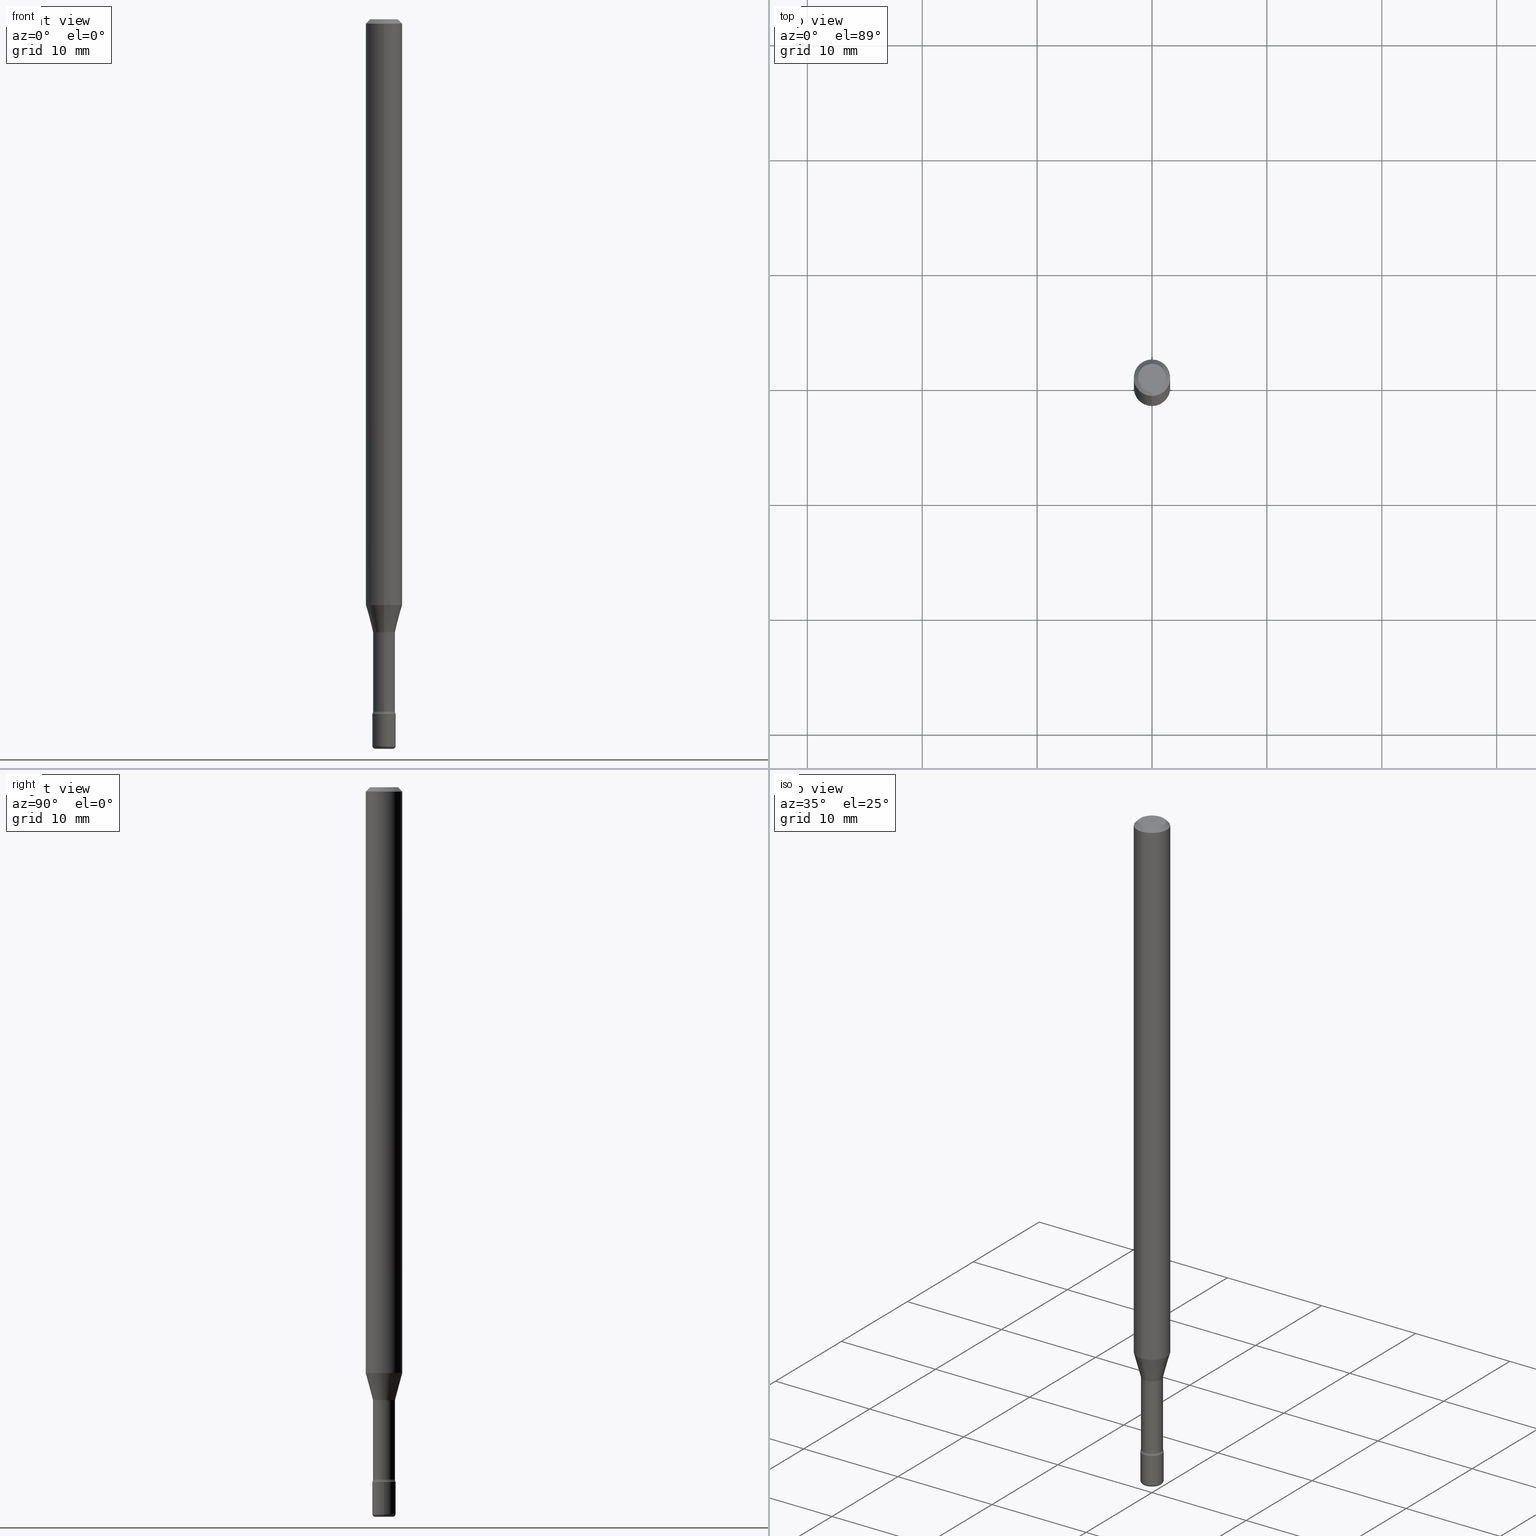
[diagram: canonical four-view strip — front | top / right | iso, engineering-drawing reading convention]
A machine part, canonical four-view strip (front | top / right | iso — engineering-drawing reading convention). The complete STEP part file that produces these views, byte-faithful:
ISO-10303-21;
HEADER;
FILE_DESCRIPTION (( 'STEP AP203' ),
    '1' );
FILE_NAME ('08944.STEP',
    '2024-03-06T20:11:51',
    ( '' ),
    ( '' ),
    'SwSTEP 2.0',
    'SolidWorks 2023',
    '' );
FILE_SCHEMA (( 'CONFIG_CONTROL_DESIGN' ));
ENDSEC;

DATA;
#1 = ORIENTED_EDGE ( 'NONE', *, *, #123, .F. ) ;
#2 = CARTESIAN_POINT ( 'NONE',  ( 5.820215758720625190E-29, -8.309725586446686731E-15, -2.379999999999999893 ) ) ;
#3 = DIRECTION ( 'NONE',  ( -2.445468806185136597E-29, 3.491481338843145583E-15, 1.000000000000000000 ) ) ;
#4 = AXIS2_PLACEMENT_3D ( 'NONE', #107, #219, #493 ) ;
#5 = CARTESIAN_POINT ( 'NONE',  ( 5.800312587032241644E-29, -8.281309132162736146E-15, -2.371861204020250025 ) ) ;
#6 = AXIS2_PLACEMENT_3D ( 'NONE', #171, #3, #315 ) ;
#7 = VERTEX_POINT ( 'NONE', #454 ) ;
#8 = CARTESIAN_POINT ( 'NONE',  ( -2.625593966809521792E-16, -0.03760000000000733589, -2.101974787463810834 ) ) ;
#9 = EDGE_LOOP ( 'NONE', ( #436, #547 ) ) ;
#10 = ORIENTED_EDGE ( 'NONE', *, *, #160, .T. ) ;
#11 = ORIENTED_EDGE ( 'NONE', *, *, #160, .F. ) ;
#12 = DIRECTION ( 'NONE',  ( -6.982962677686265922E-15, -1.000000000000000000, 3.491701459975279518E-15 ) ) ;
#13 = AXIS2_PLACEMENT_3D ( 'NONE', #111, #460, #550 ) ;
#14 = AXIS2_PLACEMENT_3D ( 'NONE', #503, #365, #224 ) ;
#15 = CARTESIAN_POINT ( 'NONE',  ( -2.661284769303988670E-16, -0.03811111260567130732, -2.098092501787272912 ) ) ;
#16 = DIRECTION ( 'NONE',  ( 1.000000000000000000, -6.982962677686259611E-15, 0.000000000000000000 ) ) ;
#17 = EDGE_CURVE ( 'NONE', #305, #232, #286, .T. ) ;
#18 = EDGE_LOOP ( 'NONE', ( #371, #200, #1, #258 ) ) ;
#19 = EDGE_CURVE ( 'NONE', #232, #279, #332, .T. ) ;
#20 = CALENDAR_DATE ( 2024, 6, 3 ) ;
#21 = DIRECTION ( 'NONE',  ( 1.839019923739595582E-15, 0.2588190451025242922, 0.9659258262890673130 ) ) ;
#22 = DIRECTION ( 'NONE',  ( 6.982962677686265922E-15, 1.000000000000000000, -3.483106191921935554E-15 ) ) ;
#23 = CARTESIAN_POINT ( 'NONE',  ( 3.316907271900975110E-16, 0.04749999999999998668, 5.964151437511574542E-17 ) ) ;
#24 = APPROVAL_STATUS ( 'not_yet_approved' ) ;
#25 = FACE_OUTER_BOUND ( 'NONE', #221, .T. ) ;
#26 = ORIENTED_EDGE ( 'NONE', *, *, #154, .F. ) ;
#27 = TOROIDAL_SURFACE ( 'NONE', #490, 0.05260000000000000092, 0.01500000000000002373 ) ;
#28 = CARTESIAN_POINT ( 'NONE',  ( 4.440892098501114269E-16, 0.06249999999999295702, -2.007071934891535125 ) ) ;
#29 = DIRECTION ( 'NONE',  ( -6.982962677686266711E-15, -1.000000000000000000, 0.000000000000000000 ) ) ;
#30 = CARTESIAN_POINT ( 'NONE',  ( 0.04000000000000000083, -8.589044093554136769E-15, -2.379999999999999893 ) ) ;
#31 = COORDINATED_UNIVERSAL_TIME_OFFSET ( 5, 0, .BEHIND. ) ;
#32 = CC_DESIGN_PERSON_AND_ORGANIZATION_ASSIGNMENT ( #336, #120, ( #392 ) ) ;
#33 = DIRECTION ( 'NONE',  ( -4.851104656540965064E-15, -0.7071067811865501263, -0.7071067811865449082 ) ) ;
#34 = FACE_OUTER_BOUND ( 'NONE', #406, .T. ) ;
#35 = MANIFOLD_SOLID_BREP ( 'Body-Move/Copy2[2]', #324 ) ;
#36 = COORDINATED_UNIVERSAL_TIME_OFFSET ( 5, 0, .BEHIND. ) ;
#37 = CIRCLE ( 'NONE', #211, 0.03760000000000000148 ) ;
#38 = TOROIDAL_SURFACE ( 'NONE', #405, 0.02999999999999999889, 0.01000000000000008347 ) ;
#39 = LOCAL_TIME ( 15, 11, 51.00000000000000000, #231 ) ;
#40 = ORIENTED_EDGE ( 'NONE', *, *, #161, .F. ) ;
#41 = CC_DESIGN_PERSON_AND_ORGANIZATION_ASSIGNMENT ( #289, #517, ( #448 ) ) ;
#42 = EDGE_CURVE ( 'NONE', #442, #144, #337, .T. ) ;
#43 = CARTESIAN_POINT ( 'NONE',  ( 5.799948008803896804E-29, -8.281831228936231021E-15, -2.371861204020250025 ) ) ;
#44 = CIRCLE ( 'NONE', #14, 0.04000000000000000083 ) ;
#45 = DIRECTION ( 'NONE',  ( -2.445315096420110410E-29, 3.491701459975279518E-15, 1.000000000000000000 ) ) ;
#46 = VERTEX_POINT ( 'NONE', #290 ) ;
#47 = CARTESIAN_POINT ( 'NONE',  ( 6.089217327400989947E-29, -8.693788533719431716E-15, -2.489999999999999769 ) ) ;
#48 = VERTEX_POINT ( 'NONE', #236 ) ;
#49 = ORIENTED_EDGE ( 'NONE', *, *, #195, .F. ) ;
#50 = ADVANCED_BREP_SHAPE_REPRESENTATION ( '08944', ( #204, #35, #243 ), #501 ) ;
#51 = DIRECTION ( 'NONE',  ( -2.445315096420110130E-29, 3.491701459975279518E-15, 1.000000000000000000 ) ) ;
#52 = ADVANCED_FACE ( 'NONE', ( #25 ), #467, .T. ) ;
#53 = CARTESIAN_POINT ( 'NONE',  ( 2.707957421369485703E-16, 0.03811111260565665931, -2.098092501787272912 ) ) ;
#54 = AXIS2_PLACEMENT_3D ( 'NONE', #47, #271, #447 ) ;
#55 = EDGE_CURVE ( 'NONE', #128, #66, #227, .T. ) ;
#56 = DIRECTION ( 'NONE',  ( -2.445315096420110410E-29, 3.491701459975279518E-15, 1.000000000000000000 ) ) ;
#57 = DIRECTION ( 'NONE',  ( -2.445468806185136597E-29, 3.491481338843145583E-15, 1.000000000000000000 ) ) ;
#58 = AXIS2_PLACEMENT_3D ( 'NONE', #76, #257, #484 ) ;
#59 = VERTEX_POINT ( 'NONE', #519 ) ;
#60 = AXIS2_PLACEMENT_3D ( 'NONE', #314, #494, #88 ) ;
#61 = CC_DESIGN_SECURITY_CLASSIFICATION ( #193, ( #392 ) ) ;
#62 = DIRECTION ( 'NONE',  ( 7.105427357601001859E-15, 1.000000000000000000, -3.491481338843145583E-15 ) ) ;
#63 = DIRECTION ( 'NONE',  ( -6.982962677686265133E-15, -1.000000000000000000, 3.491701459975279518E-15 ) ) ;
#64 = DIRECTION ( 'NONE',  ( 0.000000000000000000, 0.000000000000000000, 1.000000000000000000 ) ) ;
#65 = ORIENTED_EDGE ( 'NONE', *, *, #277, .F. ) ;
#66 = VERTEX_POINT ( 'NONE', #116 ) ;
#67 = DIRECTION ( 'NONE',  ( 2.445315096420110130E-29, -3.491701459975279518E-15, -1.000000000000000000 ) ) ;
#68 = COORDINATED_UNIVERSAL_TIME_OFFSET ( 5, 0, .BEHIND. ) ;
#69 = DIRECTION ( 'NONE',  ( -2.445315096420110410E-29, 3.491701459975279518E-15, 1.000000000000000000 ) ) ;
#70 = AXIS2_PLACEMENT_3D ( 'NONE', #43, #45, #351 ) ;
#71 = VECTOR ( 'NONE', #89, 39.37007874015748143 ) ;
#72 = EDGE_CURVE ( 'NONE', #495, #7, #114, .T. ) ;
#73 = AXIS2_PLACEMENT_3D ( 'NONE', #408, #145, #143 ) ;
#74 = APPLICATION_PROTOCOL_DEFINITION ( 'international standard', 'config_control_design', 1994, #348 ) ;
#75 = CARTESIAN_POINT ( 'NONE',  ( -4.287811248607203282E-16, -0.06250000000000005551, -0.01499999999999981036 ) ) ;
#76 = CARTESIAN_POINT ( 'NONE',  ( 3.737454790098640296E-16, 0.05259999999999265957, -2.101974787463811278 ) ) ;
#77 = PERSON_AND_ORGANIZATION ( #190, #274 ) ;
#78 = DIRECTION ( 'NONE',  ( -2.445315096420110130E-29, 3.491701459975279518E-15, 1.000000000000000000 ) ) ;
#79 = DIRECTION ( 'NONE',  ( -2.445315096420110410E-29, 3.491701459975279518E-15, 1.000000000000000000 ) ) ;
#80 = EDGE_CURVE ( 'NONE', #355, #232, #292, .T. ) ;
#81 = DIRECTION ( 'NONE',  ( -2.445315096420110410E-29, 3.491701459975279518E-15, 1.000000000000000000 ) ) ;
#82 = CIRCLE ( 'NONE', #413, 0.01499999999999996822 ) ;
#83 = AXIS2_PLACEMENT_3D ( 'NONE', #23, #67, #567 ) ;
#84 = ORIENTED_EDGE ( 'NONE', *, *, #275, .F. ) ;
#85 = EDGE_LOOP ( 'NONE', ( #309, #418, #455, #49 ) ) ;
#86 = CIRCLE ( 'NONE', #215, 0.01000000000000008521 ) ;
#87 = FACE_OUTER_BOUND ( 'NONE', #85, .T. ) ;
#88 = DIRECTION ( 'NONE',  ( -6.982962677686265922E-15, -1.000000000000000000, 3.491701459975279518E-15 ) ) ;
#89 = DIRECTION ( 'NONE',  ( 4.937700262164548831E-15, 0.7071067811865452413, -0.7071067811865497932 ) ) ;
#90 = DIRECTION ( 'NONE',  ( -6.982962677686266711E-15, -1.000000000000000000, 0.000000000000000000 ) ) ;
#91 = CARTESIAN_POINT ( 'NONE',  ( -1.169113584055446105E-44, 1.669184350826100908E-30, 4.780733988912460139E-16 ) ) ;
#92 = ORIENTED_EDGE ( 'NONE', *, *, #391, .T. ) ;
#93 = AXIS2_PLACEMENT_3D ( 'NONE', #252, #334, #163 ) ;
#94 = CARTESIAN_POINT ( 'NONE',  ( 5.130497268306256374E-29, -7.325912651653808502E-15, -2.098092501787272912 ) ) ;
#95 = ADVANCED_FACE ( 'NONE', ( #470 ), #109, .T. ) ;
#96 = DIRECTION ( 'NONE',  ( -2.445468806185136597E-29, 3.491481338843145583E-15, 1.000000000000000000 ) ) ;
#97 = EDGE_LOOP ( 'NONE', ( #223, #533, #26, #284 ) ) ;
#98 = EDGE_CURVE ( 'NONE', #305, #495, #312, .T. ) ;
#99 = ORIENTED_EDGE ( 'NONE', *, *, #19, .F. ) ;
#100 = EDGE_CURVE ( 'NONE', #541, #212, #539, .T. ) ;
#101 = DIRECTION ( 'NONE',  ( -2.445315096420110410E-29, 3.491701459975279518E-15, 1.000000000000000000 ) ) ;
#102 = AXIS2_PLACEMENT_3D ( 'NONE', #388, #101, #63 ) ;
#103 = ORIENTED_EDGE ( 'NONE', *, *, #72, .T. ) ;
#104 = AXIS2_PLACEMENT_3D ( 'NONE', #396, #256, #173 ) ;
#105 = CALENDAR_DATE ( 2024, 6, 3 ) ;
#106 = CARTESIAN_POINT ( 'NONE',  ( 4.440892098501120186E-16, 0.06249999999999995143, -0.01500000000000024578 ) ) ;
#107 = CARTESIAN_POINT ( 'NONE',  ( 3.667972644630171939E-31, -5.237552189962929655E-17, -0.01500000000000002720 ) ) ;
#108 = CYLINDRICAL_SURFACE ( 'NONE', #339, 0.04000000000000000083 ) ;
#109 = CYLINDRICAL_SURFACE ( 'NONE', #389, 0.03760000000000002923 ) ;
#110 = DATE_TIME_ROLE ( 'creation_date' ) ;
#111 = CARTESIAN_POINT ( 'NONE',  ( 0.000000000000000000, 0.000000000000000000, 0.000000000000000000 ) ) ;
#112 = PERSON_AND_ORGANIZATION ( #190, #274 ) ;
#113 = LINE ( 'NONE', #75, #176 ) ;
#114 = CIRCLE ( 'NONE', #58, 0.01500000000000001853 ) ;
#115 = TOROIDAL_SURFACE ( 'NONE', #202, 0.02999999999999999889, 0.01000000000000008347 ) ;
#116 = CARTESIAN_POINT ( 'NONE',  ( 2.756905814749770095E-16, 0.03759999999999177195, -2.371861204020250025 ) ) ;
#117 = APPROVAL_PERSON_ORGANIZATION ( #112, #184, #159 ) ;
#118 = ADVANCED_FACE ( 'NONE', ( #34 ), #500, .F. ) ;
#119 = FACE_OUTER_BOUND ( 'NONE', #152, .T. ) ;
#120 = PERSON_AND_ORGANIZATION_ROLE ( 'design_supplier' ) ;
#121 = CARTESIAN_POINT ( 'NONE',  ( -4.364351673553916201E-16, -0.06250000000000000000, 6.963047401397009838E-16 ) ) ;
#122 = DIRECTION ( 'NONE',  ( -2.445315096420110410E-29, 3.491701459975279518E-15, 1.000000000000000000 ) ) ;
#123 = EDGE_CURVE ( 'NONE', #232, #355, #368, .T. ) ;
#124 = CARTESIAN_POINT ( 'NONE',  ( 5.139990680079710222E-29, -7.339468434218616322E-15, -2.101974787463810834 ) ) ;
#125 = DATE_AND_TIME ( #526, #353 ) ;
#126 = EDGE_CURVE ( 'NONE', #495, #305, #422, .T. ) ;
#127 = CARTESIAN_POINT ( 'NONE',  ( 5.819849929479863427E-29, -8.310249474741165062E-15, -2.379999999999999893 ) ) ;
#128 = VERTEX_POINT ( 'NONE', #374 ) ;
#129 = CIRCLE ( 'NONE', #242, 0.04000000000000000083 ) ;
#130 = ORIENTED_EDGE ( 'NONE', *, *, #80, .T. ) ;
#131 = FACE_OUTER_BOUND ( 'NONE', #561, .T. ) ;
#132 = CC_DESIGN_PERSON_AND_ORGANIZATION_ASSIGNMENT ( #385, #560, ( #392 ) ) ;
#133 = DIRECTION ( 'NONE',  ( -2.445315096420110410E-29, 3.491701459975279518E-15, 1.000000000000000000 ) ) ;
#134 = DIRECTION ( 'NONE',  ( -2.445315096420110410E-29, 3.491701459975279518E-15, 1.000000000000000000 ) ) ;
#135 = DIRECTION ( 'NONE',  ( -2.445315096420110410E-29, 3.491701459975279518E-15, 1.000000000000000000 ) ) ;
#136 = FACE_OUTER_BOUND ( 'NONE', #558, .T. ) ;
#137 = AXIS2_PLACEMENT_3D ( 'NONE', #169, #81, #178 ) ;
#138 = ADVANCED_FACE ( 'NONE', ( #119 ), #329, .T. ) ;
#139 = CYLINDRICAL_SURFACE ( 'NONE', #13, 0.04000000000000000083 ) ;
#140 = ORIENTED_EDGE ( 'NONE', *, *, #126, .F. ) ;
#141 = DIRECTION ( 'NONE',  ( -6.982962677686267499E-15, -1.000000000000000000, 0.000000000000000000 ) ) ;
#142 = EDGE_LOOP ( 'NONE', ( #250, #350, #203, #217 ) ) ;
#143 = DIRECTION ( 'NONE',  ( 1.000000000000000000, -6.982962677686273021E-15, 0.000000000000000000 ) ) ;
#144 = VERTEX_POINT ( 'NONE', #465 ) ;
#145 = DIRECTION ( 'NONE',  ( -6.982962677686266711E-15, -1.000000000000000000, 3.491481338843145583E-15 ) ) ;
#146 = AXIS2_PLACEMENT_3D ( 'NONE', #306, #133, #307 ) ;
#147 = AXIS2_PLACEMENT_3D ( 'NONE', #504, #135, #357 ) ;
#148 = CARTESIAN_POINT ( 'NONE',  ( 3.737454790098707842E-16, 0.05259999999999174364, -2.371861204020250025 ) ) ;
#149 = CYLINDRICAL_SURFACE ( 'NONE', #93, 0.03760000000000002923 ) ;
#150 = UNCERTAINTY_MEASURE_WITH_UNIT (LENGTH_MEASURE( 1.000000000000000082E-05 ), #515, 'distance_accuracy_value', 'NONE');
#151 = ORIENTED_EDGE ( 'NONE', *, *, #267, .F. ) ;
#152 = EDGE_LOOP ( 'NONE', ( #479, #401 ) ) ;
#153 = ORIENTED_EDGE ( 'NONE', *, *, #126, .T. ) ;
#154 = EDGE_CURVE ( 'NONE', #48, #442, #507, .T. ) ;
#155 = CARTESIAN_POINT ( 'NONE',  ( -0.04000000000000004247, -8.409571439415391389E-15, -2.489999999999999769 ) ) ;
#156 = AXIS2_PLACEMENT_3D ( 'NONE', #317, #489, #285 ) ;
#157 = FACE_OUTER_BOUND ( 'NONE', #142, .T. ) ;
#158 = LOCAL_TIME ( 15, 11, 51.00000000000000000, #210 ) ;
#159 = APPROVAL_ROLE ( '' ) ;
#160 = EDGE_CURVE ( 'NONE', #46, #264, #570, .T. ) ;
#161 = EDGE_CURVE ( 'NONE', #541, #442, #86, .T. ) ;
#162 = CARTESIAN_POINT ( 'NONE',  ( 0.000000000000000000, 0.000000000000000000, 0.000000000000000000 ) ) ;
#163 = DIRECTION ( 'NONE',  ( -6.982962677686265922E-15, -1.000000000000000000, 3.491701459975280701E-15 ) ) ;
#164 = AXIS2_PLACEMENT_3D ( 'NONE', #165, #340, #525 ) ;
#165 = CARTESIAN_POINT ( 'NONE',  ( 5.800312587032241644E-29, -8.281309132162736146E-15, -2.371861204020250025 ) ) ;
#166 = APPROVAL_PERSON_ORGANIZATION ( #509, #486, #466 ) ;
#167 = APPROVAL_DATE_TIME ( #522, #184 ) ;
#168 = VERTEX_POINT ( 'NONE', #30 ) ;
#169 = CARTESIAN_POINT ( 'NONE',  ( 6.614254624055285682E-46, -9.465608017287662254E-32, -2.707873144336310870E-17 ) ) ;
#170 = ORIENTED_EDGE ( 'NONE', *, *, #277, .T. ) ;
#171 = CARTESIAN_POINT ( 'NONE',  ( 6.113672015462842613E-29, -8.728703347107864943E-15, -2.500000000000000000 ) ) ;
#172 = ORIENTED_EDGE ( 'NONE', *, *, #213, .F. ) ;
#173 = DIRECTION ( 'NONE',  ( -6.982962677686265922E-15, -1.000000000000000000, 0.000000000000000000 ) ) ;
#174 = VERTEX_POINT ( 'NONE', #375 ) ;
#175 = CIRCLE ( 'NONE', #137, 0.04749999999999998668 ) ;
#176 = VECTOR ( 'NONE', #33, 39.37007874015748143 ) ;
#177 = ADVANCED_FACE ( 'NONE', ( #239 ), #206, .T. ) ;
#178 = DIRECTION ( 'NONE',  ( -6.982962677686265133E-15, -1.000000000000000000, 3.491701459975279518E-15 ) ) ;
#179 = ORIENTED_EDGE ( 'NONE', *, *, #556, .F. ) ;
#180 = ORIENTED_EDGE ( 'NONE', *, *, #251, .F. ) ;
#181 = CARTESIAN_POINT ( 'NONE',  ( 3.667972644630171939E-31, -5.237552189962929655E-17, -0.01500000000000002720 ) ) ;
#182 = PRODUCT_DEFINITION_SHAPE ( 'NONE', 'NONE',  #448 ) ;
#183 = AXIS2_PLACEMENT_3D ( 'NONE', #384, #235, #513 ) ;
#184 = APPROVAL ( #24, 'UNSPECIFIED' ) ;
#185 = ORIENTED_EDGE ( 'NONE', *, *, #440, .T. ) ;
#186 = DIRECTION ( 'NONE',  ( -2.445315096420110410E-29, 3.491701459975279518E-15, 1.000000000000000000 ) ) ;
#187 = CARTESIAN_POINT ( 'NONE',  ( 5.139990680079710222E-29, -7.339468434218616322E-15, -2.101974787463810834 ) ) ;
#188 = ORIENTED_EDGE ( 'NONE', *, *, #549, .T. ) ;
#189 = DIRECTION ( 'NONE',  ( -2.445315096420110410E-29, 3.491701459975279518E-15, 1.000000000000000000 ) ) ;
#190 = PERSON ( 'UNSPECIFIED', 'UNSPECIFIED', 'UNSPECIFIED', ('UNSPECIFIED'), ('UNSPECIFIED'), ('UNSPECIFIED') ) ;
#191 = DIRECTION ( 'NONE',  ( 1.000000000000000000, -6.982962677686245411E-15, 4.883557194083105614E-29 ) ) ;
#192 = AXIS2_PLACEMENT_3D ( 'NONE', #94, #56, #225 ) ;
#193 = SECURITY_CLASSIFICATION ( '', '', #475 ) ;
#194 = ORIENTED_EDGE ( 'NONE', *, *, #17, .T. ) ;
#195 = EDGE_CURVE ( 'NONE', #128, #59, #82, .T. ) ;
#196 = LINE ( 'NONE', #328, #434 ) ;
#197 = ORIENTED_EDGE ( 'NONE', *, *, #370, .F. ) ;
#198 = DIRECTION ( 'NONE',  ( -6.982962677686266711E-15, -1.000000000000000000, 0.000000000000000000 ) ) ;
#199 = DATE_AND_TIME ( #20, #39 ) ;
#200 = ORIENTED_EDGE ( 'NONE', *, *, #498, .T. ) ;
#201 = CARTESIAN_POINT ( 'NONE',  ( 6.089217327400989947E-29, -8.693788533719431716E-15, -2.489999999999999769 ) ) ;
#202 = AXIS2_PLACEMENT_3D ( 'NONE', #444, #321, #536 ) ;
#203 = ORIENTED_EDGE ( 'NONE', *, *, #270, .T. ) ;
#204 = MANIFOLD_SOLID_BREP ( 'Body-Move/Copy2[1]', #421 ) ;
#205 = CIRCLE ( 'NONE', #326, 0.06250000000000000000 ) ;
#206 = PLANE ( 'NONE',  #183 ) ;
#207 = DIRECTION ( 'NONE',  ( 1.000000000000000000, 0.000000000000000000, 0.000000000000000000 ) ) ;
#208 = DIRECTION ( 'NONE',  ( -2.445468806185136597E-29, 3.491481338843145583E-15, 1.000000000000000000 ) ) ;
#209 = PERSON_AND_ORGANIZATION_ROLE ( 'design_owner' ) ;
#210 = COORDINATED_UNIVERSAL_TIME_OFFSET ( 5, 0, .BEHIND. ) ;
#211 = AXIS2_PLACEMENT_3D ( 'NONE', #187, #189, #360 ) ;
#212 = VERTEX_POINT ( 'NONE', #566 ) ;
#213 = EDGE_CURVE ( 'NONE', #66, #7, #343, .T. ) ;
#214 = DIRECTION ( 'NONE',  ( -6.982962677686265922E-15, -1.000000000000000000, 4.370956789862821150E-15 ) ) ;
#215 = AXIS2_PLACEMENT_3D ( 'NONE', #282, #62, #230 ) ;
#216 = DIRECTION ( 'NONE',  ( -6.982962677686265922E-15, -1.000000000000000000, 3.491701459975279518E-15 ) ) ;
#217 = ORIENTED_EDGE ( 'NONE', *, *, #468, .T. ) ;
#218 = EDGE_CURVE ( 'NONE', #264, #46, #175, .T. ) ;
#219 = DIRECTION ( 'NONE',  ( 2.445315096420110410E-29, -3.491701459975279518E-15, -1.000000000000000000 ) ) ;
#220 = AXIS2_PLACEMENT_3D ( 'NONE', #246, #208, #428 ) ;
#221 = EDGE_LOOP ( 'NONE', ( #510, #130, #506, #345 ) ) ;
#222 = CARTESIAN_POINT ( 'NONE',  ( 3.840629472727447874E-16, 0.04749999999999998668, -1.929345507921888436E-16 ) ) ;
#223 = ORIENTED_EDGE ( 'NONE', *, *, #451, .T. ) ;
#224 = DIRECTION ( 'NONE',  ( -6.982962677686265922E-15, -1.000000000000000000, 6.829619984160658243E-15 ) ) ;
#225 = DIRECTION ( 'NONE',  ( -6.982962677686266711E-15, -1.000000000000000000, 0.000000000000000000 ) ) ;
#226 = CARTESIAN_POINT ( 'NONE',  ( 5.820215758720625190E-29, -8.309725586446686731E-15, -2.379999999999999893 ) ) ;
#227 = CIRCLE ( 'NONE', #70, 0.03760000000000005699 ) ;
#228 = VECTOR ( 'NONE', #51, 39.37007874015748143 ) ;
#229 = LOCAL_TIME ( 15, 11, 51.00000000000000000, #68 ) ;
#230 = DIRECTION ( 'NONE',  ( -1.000000000000000000, 7.105427357600962416E-15, 0.000000000000000000 ) ) ;
#231 = COORDINATED_UNIVERSAL_TIME_OFFSET ( 5, 0, .BEHIND. ) ;
#232 = VERTEX_POINT ( 'NONE', #443 ) ;
#233 = PRODUCT_RELATED_PRODUCT_CATEGORY ( 'detail', '', ( #367 ) ) ;
#234 = FACE_OUTER_BOUND ( 'NONE', #499, .T. ) ;
#235 = DIRECTION ( 'NONE',  ( 2.438088387897960049E-29, -3.491481338843145188E-15, -1.000000000000000000 ) ) ;
#236 = CARTESIAN_POINT ( 'NONE',  ( 0.04000000000000004247, -8.973107040826881753E-15, -2.489999999999999769 ) ) ;
#237 = CARTESIAN_POINT ( 'NONE',  ( -4.364351673553912750E-16, -0.06250000000000005551, -0.01499999999999981036 ) ) ;
#238 = ORIENTED_EDGE ( 'NONE', *, *, #270, .F. ) ;
#239 = FACE_OUTER_BOUND ( 'NONE', #9, .T. ) ;
#240 = VECTOR ( 'NONE', #523, 39.37007874015748143 ) ;
#241 = APPROVAL_STATUS ( 'not_yet_approved' ) ;
#242 = AXIS2_PLACEMENT_3D ( 'NONE', #2, #532, #265 ) ;
#243 = AXIS2_PLACEMENT_3D ( 'NONE', #162, #64, #207 ) ;
#244 = CARTESIAN_POINT ( 'NONE',  ( 2.671640686457978776E-16, 0.03760000000000002923, 3.467854239961754309E-16 ) ) ;
#245 = CALENDAR_DATE ( 2024, 6, 3 ) ;
#246 = CARTESIAN_POINT ( 'NONE',  ( 6.113672015462842613E-29, -8.728703347107864943E-15, -2.500000000000000000 ) ) ;
#247 = DIRECTION ( 'NONE',  ( -2.445468806185136597E-29, 3.491481338843145583E-15, 1.000000000000000000 ) ) ;
#248 = PERSON_AND_ORGANIZATION_ROLE ( 'classification_officer' ) ;
#249 = DIRECTION ( 'NONE',  ( -2.445315096420110410E-29, 3.491701459975279518E-15, 1.000000000000000000 ) ) ;
#250 = ORIENTED_EDGE ( 'NONE', *, *, #572, .F. ) ;
#251 = EDGE_CURVE ( 'NONE', #168, #144, #129, .T. ) ;
#252 = CARTESIAN_POINT ( 'NONE',  ( -1.169113584055446105E-44, 1.669184350826100908E-30, 4.780733988912460139E-16 ) ) ;
#253 = CONICAL_SURFACE ( 'NONE', #4, 0.06250000000000000000, 0.7853981633974485010 ) ;
#254 = CIRCLE ( 'NONE', #6, 0.02999999999999999889 ) ;
#255 = DIRECTION ( 'NONE',  ( -2.445468806185136597E-29, 3.491481338843145583E-15, 1.000000000000000000 ) ) ;
#256 = DIRECTION ( 'NONE',  ( -2.445315096420110410E-29, 3.491701459975279518E-15, 1.000000000000000000 ) ) ;
#257 = DIRECTION ( 'NONE',  ( 1.000000000000000000, -7.105427357601001070E-15, 4.926318204248481480E-29 ) ) ;
#258 = ORIENTED_EDGE ( 'NONE', *, *, #17, .F. ) ;
#259 = ADVANCED_FACE ( 'NONE', ( #398 ), #149, .T. ) ;
#260 = CARTESIAN_POINT ( 'NONE',  ( 4.907923301991391029E-29, -7.008096005336182102E-15, -2.007071934891535125 ) ) ;
#261 = EDGE_CURVE ( 'NONE', #59, #174, #456, .T. ) ;
#262 = LENGTH_MEASURE_WITH_UNIT ( LENGTH_MEASURE( 0.02539999999999999897 ), #441 );
#263 = PLANE ( 'NONE',  #156 ) ;
#264 = VERTEX_POINT ( 'NONE', #222 ) ;
#265 = DIRECTION ( 'NONE',  ( 1.000000000000000000, -6.982962677686259611E-15, 0.000000000000000000 ) ) ;
#266 = CONICAL_SURFACE ( 'NONE', #338, 0.06250000000000000000, 0.7853981633974485010 ) ;
#267 = EDGE_CURVE ( 'NONE', #7, #553, #37, .T. ) ;
#268 = AXIS2_PLACEMENT_3D ( 'NONE', #124, #395, #453 ) ;
#269 = CARTESIAN_POINT ( 'NONE',  ( -2.625593966810038003E-16, -0.03760000000000002923, 6.093613737863167448E-16 ) ) ;
#270 = EDGE_CURVE ( 'NONE', #264, #283, #542, .T. ) ;
#271 = DIRECTION ( 'NONE',  ( -2.445468806185136597E-29, 3.491481338843145583E-15, 1.000000000000000000 ) ) ;
#272 = CARTESIAN_POINT ( 'NONE',  ( 3.574424759935302205E-16, 0.03811111260565665931, -2.098092501787272912 ) ) ;
#273 = ORIENTED_EDGE ( 'NONE', *, *, #261, .F. ) ;
#274 = ORGANIZATION ( 'UNSPECIFIED', 'UNSPECIFIED', '' ) ;
#275 = EDGE_CURVE ( 'NONE', #66, #174, #378, .T. ) ;
#276 = APPROVAL ( #241, 'UNSPECIFIED' ) ;
#277 = EDGE_CURVE ( 'NONE', #279, #283, #545, .T. ) ;
#278 = EDGE_CURVE ( 'NONE', #442, #48, #294, .T. ) ;
#279 = VERTEX_POINT ( 'NONE', #237 ) ;
#280 = EDGE_CURVE ( 'NONE', #355, #283, #196, .T. ) ;
#281 = AXIS2_PLACEMENT_3D ( 'NONE', #91, #554, #12 ) ;
#282 = CARTESIAN_POINT ( 'NONE',  ( -0.02999999999999999889, -8.480625712991401471E-15, -2.489999999999999769 ) ) ;
#283 = VERTEX_POINT ( 'NONE', #106 ) ;
#284 = ORIENTED_EDGE ( 'NONE', *, *, #549, .F. ) ;
#285 = DIRECTION ( 'NONE',  ( -6.982962677686265922E-15, -1.000000000000000000, 3.491701459975279518E-15 ) ) ;
#286 = LINE ( 'NONE', #458, #480 ) ;
#287 = ORIENTED_EDGE ( 'NONE', *, *, #261, .T. ) ;
#288 = DESIGN_CONTEXT ( 'detailed design', #348, 'design' ) ;
#289 = PERSON_AND_ORGANIZATION ( #190, #274 ) ;
#290 = CARTESIAN_POINT ( 'NONE',  ( -3.773273898774339776E-16, -0.04749999999999998668, 1.387770879054626386E-16 ) ) ;
#291 = EDGE_LOOP ( 'NONE', ( #40, #331, #188, #323 ) ) ;
#292 = CIRCLE ( 'NONE', #366, 0.06250000000000000000 ) ;
#293 = DATE_AND_TIME ( #245, #158 ) ;
#294 = CIRCLE ( 'NONE', #54, 0.04000000000000000083 ) ;
#295 = AXIS2_PLACEMENT_3D ( 'NONE', #316, #361, #90 ) ;
#296 = DIRECTION ( 'NONE',  ( -6.982962677686265922E-15, -1.000000000000000000, 3.491701459975280701E-15 ) ) ;
#297 = DIRECTION ( 'NONE',  ( -6.982962677686265922E-15, -1.000000000000000000, 4.370956789862821150E-15 ) ) ;
#298 = ORIENTED_EDGE ( 'NONE', *, *, #498, .F. ) ;
#299 = DATE_TIME_ROLE ( 'classification_date' ) ;
#300 = ADVANCED_FACE ( 'NONE', ( #412 ), #115, .T. ) ;
#301 = ORIENTED_EDGE ( 'NONE', *, *, #80, .F. ) ;
#302 = DIRECTION ( 'NONE',  ( 1.000000000000000000, -6.982962677686265922E-15, 4.876176775795935793E-29 ) ) ;
#303 = ADVANCED_FACE ( 'NONE', ( #359 ), #439, .T. ) ;
#304 = EDGE_LOOP ( 'NONE', ( #548, #382, #496, #197 ) ) ;
#305 = VERTEX_POINT ( 'NONE', #15 ) ;
#306 = CARTESIAN_POINT ( 'NONE',  ( -1.169113584055446105E-44, 1.669184350826100908E-30, 4.780733988912460139E-16 ) ) ;
#307 = DIRECTION ( 'NONE',  ( -6.982962677686265922E-15, -1.000000000000000000, 3.491701459975279518E-15 ) ) ;
#308 = DIRECTION ( 'NONE',  ( -1.000000000000000000, 6.982962677686265922E-15, -4.883557194083112340E-29 ) ) ;
#309 = ORIENTED_EDGE ( 'NONE', *, *, #469, .F. ) ;
#310 = CARTESIAN_POINT ( 'NONE',  ( -3.673038368462462390E-16, -0.05260000000000734227, -2.101974787463810834 ) ) ;
#311 = FACE_OUTER_BOUND ( 'NONE', #333, .T. ) ;
#312 = CIRCLE ( 'NONE', #481, 0.03811111260566397985 ) ;
#313 = CIRCLE ( 'NONE', #347, 0.04000000000000000083 ) ;
#314 = CARTESIAN_POINT ( 'NONE',  ( 5.140313774130382338E-29, -7.339005745148683013E-15, -2.101974787463810834 ) ) ;
#315 = DIRECTION ( 'NONE',  ( 1.000000000000000000, -6.982962677686236734E-15, 0.000000000000000000 ) ) ;
#316 = CARTESIAN_POINT ( 'NONE',  ( 5.130497268306256374E-29, -7.325912651653808502E-15, -2.098092501787272912 ) ) ;
#317 = CARTESIAN_POINT ( 'NONE',  ( 2.793185071075088075E-16, 0.03999999999999169498, -2.380000000000000338 ) ) ;
#318 = AXIS2_PLACEMENT_3D ( 'NONE', #127, #69, #524 ) ;
#319 = CIRCLE ( 'NONE', #73, 0.01000000000000008521 ) ;
#320 = DIRECTION ( 'NONE',  ( 7.105427357601001859E-15, 1.000000000000000000, 0.000000000000000000 ) ) ;
#321 = DIRECTION ( 'NONE',  ( -2.445468806185136597E-29, 3.491481338843145583E-15, 1.000000000000000000 ) ) ;
#322 = ORIENTED_EDGE ( 'NONE', *, *, #469, .T. ) ;
#323 = ORIENTED_EDGE ( 'NONE', *, *, #278, .F. ) ;
#324 = CLOSED_SHELL ( 'NONE', ( #379, #259, #424, #362, #415, #303, #492, #52, #420, #445, #431, #118, #95, #363 ) ) ;
#325 = AXIS2_PLACEMENT_3D ( 'NONE', #5, #186, #216 ) ;
#326 = AXIS2_PLACEMENT_3D ( 'NONE', #181, #529, #354 ) ;
#327 = SHAPE_DEFINITION_REPRESENTATION ( #182, #50 ) ;
#328 = CARTESIAN_POINT ( 'NONE',  ( 4.440892098500625669E-16, 0.06250000000000000000, 2.598420576427910934E-16 ) ) ;
#329 = PLANE ( 'NONE',  #471 ) ;
#330 =( NAMED_UNIT ( * ) SI_UNIT ( $, .STERADIAN. ) SOLID_ANGLE_UNIT ( ) );
#331 = ORIENTED_EDGE ( 'NONE', *, *, #100, .T. ) ;
#332 = LINE ( 'NONE', #121, #544 ) ;
#333 = EDGE_LOOP ( 'NONE', ( #273, #179 ) ) ;
#334 = DIRECTION ( 'NONE',  ( -2.445315096420110410E-29, 3.491701459975279518E-15, 1.000000000000000000 ) ) ;
#335 = CARTESIAN_POINT ( 'NONE',  ( -1.169113584055446105E-44, 1.669184350826100908E-30, 4.780733988912460139E-16 ) ) ;
#336 = PERSON_AND_ORGANIZATION ( #190, #274 ) ;
#337 = LINE ( 'NONE', #426, #240 ) ;
#338 = AXIS2_PLACEMENT_3D ( 'NONE', #419, #474, #22 ) ;
#339 = AXIS2_PLACEMENT_3D ( 'NONE', #427, #255, #302 ) ;
#340 = DIRECTION ( 'NONE',  ( -2.445315096420110410E-29, 3.491701459975279518E-15, 1.000000000000000000 ) ) ;
#341 = APPROVAL_DATE_TIME ( #417, #486 ) ;
#342 = ORIENTED_EDGE ( 'NONE', *, *, #440, .F. ) ;
#343 = LINE ( 'NONE', #244, #397 ) ;
#344 = CC_DESIGN_DATE_AND_TIME_ASSIGNMENT ( #293, #110, ( #448 ) ) ;
#345 = ORIENTED_EDGE ( 'NONE', *, *, #468, .F. ) ;
#346 = CIRCLE ( 'NONE', #538, 0.01500000000000001853 ) ;
#347 = AXIS2_PLACEMENT_3D ( 'NONE', #226, #96, #16 ) ;
#348 = APPLICATION_CONTEXT ( 'configuration controlled 3d designs of mechanical parts and assemblies' ) ;
#349 = ADVANCED_FACE ( 'NONE', ( #136 ), #139, .T. ) ;
#350 = ORIENTED_EDGE ( 'NONE', *, *, #218, .F. ) ;
#351 = DIRECTION ( 'NONE',  ( -6.982962677686265922E-15, -1.000000000000000000, 0.000000000000000000 ) ) ;
#352 = TOROIDAL_SURFACE ( 'NONE', #325, 0.05260000000000002174, 0.01499999999999996822 ) ;
#353 = LOCAL_TIME ( 15, 11, 51.00000000000000000, #36 ) ;
#354 = DIRECTION ( 'NONE',  ( -6.982962677686265922E-15, -1.000000000000000000, 3.483106191921935554E-15 ) ) ;
#355 = VERTEX_POINT ( 'NONE', #28 ) ;
#356 = CARTESIAN_POINT ( 'NONE',  ( 5.140313774130382338E-29, -7.339005745148683013E-15, -2.101974787463810834 ) ) ;
#357 = DIRECTION ( 'NONE',  ( -6.982962677686265922E-15, -1.000000000000000000, 3.483106191921935554E-15 ) ) ;
#358 = DIMENSIONAL_EXPONENTS ( 1.000000000000000000, 0.000000000000000000, 0.000000000000000000, 0.000000000000000000, 0.000000000000000000, 0.000000000000000000, 0.000000000000000000 ) ;
#359 = FACE_OUTER_BOUND ( 'NONE', #18, .T. ) ;
#360 = DIRECTION ( 'NONE',  ( -6.982962677686265922E-15, -1.000000000000000000, 0.000000000000000000 ) ) ;
#361 = DIRECTION ( 'NONE',  ( -2.445315096420110410E-29, 3.491701459975279518E-15, 1.000000000000000000 ) ) ;
#362 = ADVANCED_FACE ( 'NONE', ( #234 ), #266, .T. ) ;
#363 = ADVANCED_FACE ( 'NONE', ( #546 ), #27, .F. ) ;
#364 = CARTESIAN_POINT ( 'NONE',  ( -0.02999999999999999889, -8.462555982897612254E-15, -2.500000000000000000 ) ) ;
#365 = DIRECTION ( 'NONE',  ( -2.445315096420110410E-29, 3.491701459975279518E-15, 1.000000000000000000 ) ) ;
#366 = AXIS2_PLACEMENT_3D ( 'NONE', #260, #438, #214 ) ;
#367 = PRODUCT ( '08944', '08944', '', ( #376 ) ) ;
#368 = CIRCLE ( 'NONE', #555, 0.06250000000000000000 ) ;
#369 = CARTESIAN_POINT ( 'NONE',  ( 0.04000000000000000083, -2.793185071074506290E-16, 1.950470710318374387E-30 ) ) ;
#370 = EDGE_CURVE ( 'NONE', #128, #553, #531, .T. ) ;
#371 = ORIENTED_EDGE ( 'NONE', *, *, #98, .T. ) ;
#372 = ORIENTED_EDGE ( 'NONE', *, *, #391, .F. ) ;
#373 = APPLICATION_CONTEXT ( 'configuration controlled 3d designs of mechanical parts and assemblies' ) ;
#374 = CARTESIAN_POINT ( 'NONE',  ( -2.625593966809460162E-16, -0.03760000000000833509, -2.371861204020250025 ) ) ;
#375 = CARTESIAN_POINT ( 'NONE',  ( 2.842170943040980615E-16, 0.03999999999999167416, -2.380000000000000338 ) ) ;
#376 = MECHANICAL_CONTEXT ( 'NONE', #373, 'mechanical' ) ;
#377 = EDGE_LOOP ( 'NONE', ( #298, #153, #194, #301 ) ) ;
#378 = CIRCLE ( 'NONE', #449, 0.01499999999999996822 ) ;
#379 = ADVANCED_FACE ( 'NONE', ( #131 ), #563, .F. ) ;
#380 = CIRCLE ( 'NONE', #104, 0.03760000000000005699 ) ;
#381 = CARTESIAN_POINT ( 'NONE',  ( 5.820215758720625190E-29, -8.309725586446686731E-15, -2.379999999999999893 ) ) ;
#382 = ORIENTED_EDGE ( 'NONE', *, *, #213, .T. ) ;
#383 = ORIENTED_EDGE ( 'NONE', *, *, #42, .T. ) ;
#384 = CARTESIAN_POINT ( 'NONE',  ( 2.094888803306491331E-16, 0.02999999999999126976, -2.500000000000000000 ) ) ;
#385 = PERSON_AND_ORGANIZATION ( #190, #274 ) ;
#386 = DIRECTION ( 'NONE',  ( -2.445315096420110130E-29, 3.491701459975279518E-15, 1.000000000000000000 ) ) ;
#387 = ORIENTED_EDGE ( 'NONE', *, *, #218, .T. ) ;
#388 = CARTESIAN_POINT ( 'NONE',  ( 6.614254624055285682E-46, -9.465608017287662254E-32, -2.707873144336310870E-17 ) ) ;
#389 = AXIS2_PLACEMENT_3D ( 'NONE', #335, #518, #296 ) ;
#390 = APPLICATION_PROTOCOL_DEFINITION ( 'international standard', 'config_control_design', 1994, #373 ) ;
#391 = EDGE_CURVE ( 'NONE', #305, #553, #346, .T. ) ;
#392 = PRODUCT_DEFINITION_FORMATION_WITH_SPECIFIED_SOURCE ( 'ANY', '', #367, .NOT_KNOWN. ) ;
#393 = EDGE_LOOP ( 'NONE', ( #568, #383, #180, #342 ) ) ;
#394 = PLANE ( 'NONE',  #83 ) ;
#395 = DIRECTION ( 'NONE',  ( -2.445315096420110410E-29, 3.491701459975279518E-15, 1.000000000000000000 ) ) ;
#396 = CARTESIAN_POINT ( 'NONE',  ( 5.799948008803896804E-29, -8.281831228936231021E-15, -2.371861204020250025 ) ) ;
#397 = VECTOR ( 'NONE', #386, 39.37007874015748143 ) ;
#398 = FACE_OUTER_BOUND ( 'NONE', #304, .T. ) ;
#399 = ORIENTED_EDGE ( 'NONE', *, *, #572, .T. ) ;
#400 = FACE_OUTER_BOUND ( 'NONE', #540, .T. ) ;
#401 = ORIENTED_EDGE ( 'NONE', *, *, #534, .T. ) ;
#402 = DIRECTION ( 'NONE',  ( -1.000000000000000000, 6.982962677686265922E-15, -4.883557194083112340E-29 ) ) ;
#403 = ORIENTED_EDGE ( 'NONE', *, *, #280, .T. ) ;
#404 = VECTOR ( 'NONE', #416, 39.37007874015748143 ) ;
#405 = AXIS2_PLACEMENT_3D ( 'NONE', #502, #57, #191 ) ;
#406 = EDGE_LOOP ( 'NONE', ( #84, #487, #528, #287 ) ) ;
#407 = DIRECTION ( 'NONE',  ( 1.000000000000000000, -7.105427357601001070E-15, 4.926318204248481480E-29 ) ) ;
#408 = CARTESIAN_POINT ( 'NONE',  ( 0.02999999999999999889, -8.903277414050018455E-15, -2.489999999999999769 ) ) ;
#409 = FACE_OUTER_BOUND ( 'NONE', #393, .T. ) ;
#410 = CARTESIAN_POINT ( 'NONE',  ( 4.364351673553919652E-16, 0.06249999999999995143, -0.01500000000000024578 ) ) ;
#411 = ORIENTED_EDGE ( 'NONE', *, *, #534, .F. ) ;
#412 = FACE_OUTER_BOUND ( 'NONE', #97, .T. ) ;
#413 = AXIS2_PLACEMENT_3D ( 'NONE', #429, #308, #432 ) ;
#414 = CC_DESIGN_APPROVAL ( #184, ( #448 ) ) ;
#415 = ADVANCED_FACE ( 'NONE', ( #400 ), #497, .T. ) ;
#416 = DIRECTION ( 'NONE',  ( -2.445468806185136877E-29, 3.491481338843145188E-15, 1.000000000000000000 ) ) ;
#417 = DATE_AND_TIME ( #461, #491 ) ;
#418 = ORIENTED_EDGE ( 'NONE', *, *, #275, .T. ) ;
#419 = CARTESIAN_POINT ( 'NONE',  ( 3.667972644630171939E-31, -5.237552189962929655E-17, -0.01500000000000002720 ) ) ;
#420 = ADVANCED_FACE ( 'NONE', ( #157 ), #253, .T. ) ;
#421 = CLOSED_SHELL ( 'NONE', ( #569, #300, #138, #177, #512, #349 ) ) ;
#422 = CIRCLE ( 'NONE', #520, 0.03811111260566397985 ) ;
#423 = APPROVAL_ROLE ( '' ) ;
#424 = ADVANCED_FACE ( 'NONE', ( #87 ), #352, .F. ) ;
#425 =( NAMED_UNIT ( * ) PLANE_ANGLE_UNIT ( ) SI_UNIT ( $, .RADIAN. ) );
#426 = CARTESIAN_POINT ( 'NONE',  ( -0.04000000000000000083, 2.842170943040400803E-16, -1.967574036101962509E-30 ) ) ;
#427 = CARTESIAN_POINT ( 'NONE',  ( 0.000000000000000000, 0.000000000000000000, 0.000000000000000000 ) ) ;
#428 = DIRECTION ( 'NONE',  ( 1.000000000000000000, -6.982962677686236734E-15, 0.000000000000000000 ) ) ;
#429 = CARTESIAN_POINT ( 'NONE',  ( -3.673038368462397802E-16, -0.05260000000000830678, -2.371861204020249581 ) ) ;
#430 = FACE_OUTER_BOUND ( 'NONE', #291, .T. ) ;
#431 = ADVANCED_FACE ( 'NONE', ( #311 ), #263, .F. ) ;
#432 = DIRECTION ( 'NONE',  ( -6.982962677686266711E-15, -1.000000000000000000, 0.000000000000000000 ) ) ;
#433 = EDGE_LOOP ( 'NONE', ( #172, #322, #437, #151 ) ) ;
#434 = VECTOR ( 'NONE', #511, 39.37007874015748143 ) ;
#435 = CIRCLE ( 'NONE', #268, 0.03760000000000000148 ) ;
#436 = ORIENTED_EDGE ( 'NONE', *, *, #451, .F. ) ;
#437 = ORIENTED_EDGE ( 'NONE', *, *, #370, .T. ) ;
#438 = DIRECTION ( 'NONE',  ( -2.445315096420110410E-29, 3.491701459975279518E-15, 1.000000000000000000 ) ) ;
#439 = CONICAL_SURFACE ( 'NONE', #192, 0.03811111260566397985, 0.2617993877991495744 ) ;
#440 = EDGE_CURVE ( 'NONE', #48, #168, #462, .T. ) ;
#441 =( LENGTH_UNIT ( ) NAMED_UNIT ( * ) SI_UNIT ( $, .METRE. ) );
#442 = VERTEX_POINT ( 'NONE', #155 ) ;
#443 = CARTESIAN_POINT ( 'NONE',  ( -4.364351673553428586E-16, -0.06250000000000703604, -2.007071934891534681 ) ) ;
#444 = CARTESIAN_POINT ( 'NONE',  ( 6.089217327400989947E-29, -8.693788533719431716E-15, -2.489999999999999769 ) ) ;
#445 = ADVANCED_FACE ( 'NONE', ( #543 ), #394, .F. ) ;
#446 = ORIENTED_EDGE ( 'NONE', *, *, #267, .T. ) ;
#447 = DIRECTION ( 'NONE',  ( 1.000000000000000000, -6.982962677686259611E-15, 0.000000000000000000 ) ) ;
#448 = PRODUCT_DEFINITION ( 'UNKNOWN', '', #392, #288 ) ;
#449 = AXIS2_PLACEMENT_3D ( 'NONE', #148, #407, #320 ) ;
#450 = LINE ( 'NONE', #53, #521 ) ;
#451 = EDGE_CURVE ( 'NONE', #212, #541, #254, .T. ) ;
#452 = FACE_OUTER_BOUND ( 'NONE', #377, .T. ) ;
#453 = DIRECTION ( 'NONE',  ( -6.982962677686265922E-15, -1.000000000000000000, 0.000000000000000000 ) ) ;
#454 = CARTESIAN_POINT ( 'NONE',  ( 2.671640686458558096E-16, 0.03759999999999266707, -2.101974787463810834 ) ) ;
#455 = ORIENTED_EDGE ( 'NONE', *, *, #556, .T. ) ;
#456 = CIRCLE ( 'NONE', #318, 0.04000000000000000083 ) ;
#457 = ORIENTED_EDGE ( 'NONE', *, *, #72, .F. ) ;
#458 = CARTESIAN_POINT ( 'NONE',  ( -2.661284769303988670E-16, -0.03811111260567130732, -2.098092501787272912 ) ) ;
#459 = EDGE_LOOP ( 'NONE', ( #457, #527, #92, #488 ) ) ;
#460 = DIRECTION ( 'NONE',  ( -2.445468806185136597E-29, 3.491481338843145583E-15, 1.000000000000000000 ) ) ;
#461 = CALENDAR_DATE ( 2024, 6, 3 ) ;
#462 = LINE ( 'NONE', #369, #404 ) ;
#463 = EDGE_LOOP ( 'NONE', ( #387, #10 ) ) ;
#464 = CARTESIAN_POINT ( 'NONE',  ( 5.130497268306256374E-29, -7.325912651653808502E-15, -2.098092501787272912 ) ) ;
#465 = CARTESIAN_POINT ( 'NONE',  ( -0.04000000000000000083, -8.217539965779019686E-15, -2.379999999999999893 ) ) ;
#466 = APPROVAL_ROLE ( '' ) ;
#467 = CYLINDRICAL_SURFACE ( 'NONE', #146, 0.06250000000000000000 ) ;
#468 = EDGE_CURVE ( 'NONE', #283, #279, #205, .T. ) ;
#469 = EDGE_CURVE ( 'NONE', #66, #128, #380, .T. ) ;
#470 = FACE_OUTER_BOUND ( 'NONE', #433, .T. ) ;
#471 = AXIS2_PLACEMENT_3D ( 'NONE', #381, #516, #565 ) ;
#472 = CC_DESIGN_APPROVAL ( #276, ( #193 ) ) ;
#473 = APPROVAL_STATUS ( 'not_yet_approved' ) ;
#474 = DIRECTION ( 'NONE',  ( 2.445315096420110410E-29, -3.491701459975279518E-15, -1.000000000000000000 ) ) ;
#475 = SECURITY_CLASSIFICATION_LEVEL ( 'unclassified' ) ;
#476 = CC_DESIGN_PERSON_AND_ORGANIZATION_ASSIGNMENT ( #77, #248, ( #193 ) ) ;
#477 = CARTESIAN_POINT ( 'NONE',  ( 5.130497268306256374E-29, -7.325912651653808502E-15, -2.098092501787272912 ) ) ;
#478 = PERSON_AND_ORGANIZATION ( #190, #274 ) ;
#479 = ORIENTED_EDGE ( 'NONE', *, *, #251, .T. ) ;
#480 = VECTOR ( 'NONE', #552, 39.37007874015748854 ) ;
#481 = AXIS2_PLACEMENT_3D ( 'NONE', #464, #249, #29 ) ;
#482 = EDGE_CURVE ( 'NONE', #553, #7, #435, .T. ) ;
#483 = ORIENTED_EDGE ( 'NONE', *, *, #123, .T. ) ;
#484 = DIRECTION ( 'NONE',  ( 7.105427357601001859E-15, 1.000000000000000000, 0.000000000000000000 ) ) ;
#485 = DIRECTION ( 'NONE',  ( -6.982962677686265922E-15, -1.000000000000000000, 3.491701459975279518E-15 ) ) ;
#486 = APPROVAL ( #473, 'UNSPECIFIED' ) ;
#487 = ORIENTED_EDGE ( 'NONE', *, *, #55, .F. ) ;
#488 = ORIENTED_EDGE ( 'NONE', *, *, #482, .T. ) ;
#489 = DIRECTION ( 'NONE',  ( -2.445315096420110130E-29, 3.491701459975279518E-15, 1.000000000000000000 ) ) ;
#490 = AXIS2_PLACEMENT_3D ( 'NONE', #356, #134, #485 ) ;
#491 = LOCAL_TIME ( 15, 11, 51.00000000000000000, #31 ) ;
#492 = ADVANCED_FACE ( 'NONE', ( #452 ), #508, .T. ) ;
#493 = DIRECTION ( 'NONE',  ( 6.982962677686265922E-15, 1.000000000000000000, -3.483106191921935554E-15 ) ) ;
#494 = DIRECTION ( 'NONE',  ( -2.445315096420110410E-29, 3.491701459975279518E-15, 1.000000000000000000 ) ) ;
#495 = VERTEX_POINT ( 'NONE', #272 ) ;
#496 = ORIENTED_EDGE ( 'NONE', *, *, #482, .F. ) ;
#497 = CYLINDRICAL_SURFACE ( 'NONE', #281, 0.06250000000000000000 ) ;
#498 = EDGE_CURVE ( 'NONE', #495, #355, #450, .T. ) ;
#499 = EDGE_LOOP ( 'NONE', ( #11, #399, #170, #238 ) ) ;
#500 = TOROIDAL_SURFACE ( 'NONE', #164, 0.05260000000000002174, 0.01499999999999996822 ) ;
#501 =( GEOMETRIC_REPRESENTATION_CONTEXT ( 3 ) GLOBAL_UNCERTAINTY_ASSIGNED_CONTEXT ( ( #150 ) ) GLOBAL_UNIT_ASSIGNED_CONTEXT ( ( #515, #425, #330 ) ) REPRESENTATION_CONTEXT ( 'NONE', 'WORKASPACE' ) );
#502 = CARTESIAN_POINT ( 'NONE',  ( 6.089217327400989947E-29, -8.693788533719431716E-15, -2.489999999999999769 ) ) ;
#503 = CARTESIAN_POINT ( 'NONE',  ( 5.819849929479863427E-29, -8.310249474741165062E-15, -2.379999999999999893 ) ) ;
#504 = CARTESIAN_POINT ( 'NONE',  ( 3.667972644630171939E-31, -5.237552189962929655E-17, -0.01500000000000002720 ) ) ;
#505 = ORIENTED_EDGE ( 'NONE', *, *, #278, .T. ) ;
#506 = ORIENTED_EDGE ( 'NONE', *, *, #19, .T. ) ;
#507 = CIRCLE ( 'NONE', #530, 0.04000000000000000083 ) ;
#508 = CONICAL_SURFACE ( 'NONE', #295, 0.03811111260566397985, 0.2617993877991495744 ) ;
#509 = PERSON_AND_ORGANIZATION ( #190, #274 ) ;
#510 = ORIENTED_EDGE ( 'NONE', *, *, #280, .F. ) ;
#511 = DIRECTION ( 'NONE',  ( -2.445315096420110130E-29, 3.491701459975279518E-15, 1.000000000000000000 ) ) ;
#512 = ADVANCED_FACE ( 'NONE', ( #430 ), #38, .T. ) ;
#513 = DIRECTION ( 'NONE',  ( -1.000000000000000000, 6.982962677686265922E-15, -4.876176775795935793E-29 ) ) ;
#514 = PERSON_AND_ORGANIZATION ( #190, #274 ) ;
#515 =( CONVERSION_BASED_UNIT ( 'INCH', #262 ) LENGTH_UNIT ( ) NAMED_UNIT ( #358 ) );
#516 = DIRECTION ( 'NONE',  ( -2.438088387897960049E-29, 3.491481338843145188E-15, 1.000000000000000000 ) ) ;
#517 = PERSON_AND_ORGANIZATION_ROLE ( 'creator' ) ;
#518 = DIRECTION ( 'NONE',  ( -2.445315096420110410E-29, 3.491701459975279518E-15, 1.000000000000000000 ) ) ;
#519 = CARTESIAN_POINT ( 'NONE',  ( -2.793185071073924012E-16, -0.04000000000000829975, -2.379999999999999893 ) ) ;
#520 = AXIS2_PLACEMENT_3D ( 'NONE', #477, #79, #198 ) ;
#521 = VECTOR ( 'NONE', #21, 39.37007874015748854 ) ;
#522 = DATE_AND_TIME ( #105, #229 ) ;
#523 = DIRECTION ( 'NONE',  ( -2.445468806185136877E-29, 3.491481338843145188E-15, 1.000000000000000000 ) ) ;
#524 = DIRECTION ( 'NONE',  ( -6.982962677686265922E-15, -1.000000000000000000, 6.829619984160658243E-15 ) ) ;
#525 = DIRECTION ( 'NONE',  ( -6.982962677686265922E-15, -1.000000000000000000, 3.491701459975279518E-15 ) ) ;
#526 = CALENDAR_DATE ( 2024, 6, 3 ) ;
#527 = ORIENTED_EDGE ( 'NONE', *, *, #98, .F. ) ;
#528 = ORIENTED_EDGE ( 'NONE', *, *, #195, .T. ) ;
#529 = DIRECTION ( 'NONE',  ( -2.445315096420110410E-29, 3.491701459975279518E-15, 1.000000000000000000 ) ) ;
#530 = AXIS2_PLACEMENT_3D ( 'NONE', #201, #247, #557 ) ;
#531 = LINE ( 'NONE', #269, #228 ) ;
#532 = DIRECTION ( 'NONE',  ( -2.445468806185136597E-29, 3.491481338843145583E-15, 1.000000000000000000 ) ) ;
#533 = ORIENTED_EDGE ( 'NONE', *, *, #161, .T. ) ;
#534 = EDGE_CURVE ( 'NONE', #144, #168, #313, .T. ) ;
#535 = ORIENTED_EDGE ( 'NONE', *, *, #42, .F. ) ;
#536 = DIRECTION ( 'NONE',  ( 1.000000000000000000, -6.982962677686245411E-15, 4.883557194083105614E-29 ) ) ;
#537 = CC_DESIGN_DATE_AND_TIME_ASSIGNMENT ( #125, #299, ( #193 ) ) ;
#538 = AXIS2_PLACEMENT_3D ( 'NONE', #310, #402, #141 ) ;
#539 = CIRCLE ( 'NONE', #220, 0.02999999999999999889 ) ;
#540 = EDGE_LOOP ( 'NONE', ( #483, #403, #65, #99 ) ) ;
#541 = VERTEX_POINT ( 'NONE', #364 ) ;
#542 = LINE ( 'NONE', #410, #71 ) ;
#543 = FACE_OUTER_BOUND ( 'NONE', #463, .T. ) ;
#544 = VECTOR ( 'NONE', #78, 39.37007874015748143 ) ;
#545 = CIRCLE ( 'NONE', #147, 0.06250000000000000000 ) ;
#546 = FACE_OUTER_BOUND ( 'NONE', #459, .T. ) ;
#547 = ORIENTED_EDGE ( 'NONE', *, *, #100, .F. ) ;
#548 = ORIENTED_EDGE ( 'NONE', *, *, #55, .T. ) ;
#549 = EDGE_CURVE ( 'NONE', #212, #48, #319, .T. ) ;
#550 = DIRECTION ( 'NONE',  ( 1.000000000000000000, -6.982962677686265922E-15, 4.876176775795935793E-29 ) ) ;
#551 = APPROVAL_DATE_TIME ( #199, #276 ) ;
#552 = DIRECTION ( 'NONE',  ( -1.807323732225325406E-15, -0.2588190451025175198, 0.9659258262890690894 ) ) ;
#553 = VERTEX_POINT ( 'NONE', #8 ) ;
#554 = DIRECTION ( 'NONE',  ( -2.445315096420110410E-29, 3.491701459975279518E-15, 1.000000000000000000 ) ) ;
#555 = AXIS2_PLACEMENT_3D ( 'NONE', #562, #122, #297 ) ;
#556 = EDGE_CURVE ( 'NONE', #174, #59, #44, .T. ) ;
#557 = DIRECTION ( 'NONE',  ( 1.000000000000000000, -6.982962677686259611E-15, 0.000000000000000000 ) ) ;
#558 = EDGE_LOOP ( 'NONE', ( #535, #505, #185, #411 ) ) ;
#559 = CC_DESIGN_PERSON_AND_ORGANIZATION_ASSIGNMENT ( #514, #209, ( #367 ) ) ;
#560 = PERSON_AND_ORGANIZATION_ROLE ( 'creator' ) ;
#561 = EDGE_LOOP ( 'NONE', ( #140, #103, #446, #372 ) ) ;
#562 = CARTESIAN_POINT ( 'NONE',  ( 4.907923301991391029E-29, -7.008096005336182102E-15, -2.007071934891535125 ) ) ;
#563 = TOROIDAL_SURFACE ( 'NONE', #60, 0.05260000000000000092, 0.01500000000000002373 ) ;
#564 = CC_DESIGN_APPROVAL ( #486, ( #392 ) ) ;
#565 = DIRECTION ( 'NONE',  ( 1.000000000000000000, -6.982962677686265922E-15, 4.876176775795935793E-29 ) ) ;
#566 = CARTESIAN_POINT ( 'NONE',  ( 0.02999999999999999889, -8.938192227438451682E-15, -2.500000000000000000 ) ) ;
#567 = DIRECTION ( 'NONE',  ( 6.982962677686265922E-15, 1.000000000000000000, -3.491701459975279518E-15 ) ) ;
#568 = ORIENTED_EDGE ( 'NONE', *, *, #154, .T. ) ;
#569 = ADVANCED_FACE ( 'NONE', ( #409 ), #108, .T. ) ;
#570 = CIRCLE ( 'NONE', #102, 0.04749999999999998668 ) ;
#571 = APPROVAL_PERSON_ORGANIZATION ( #478, #276, #423 ) ;
#572 = EDGE_CURVE ( 'NONE', #46, #279, #113, .T. ) ;
ENDSEC;
END-ISO-10303-21;
